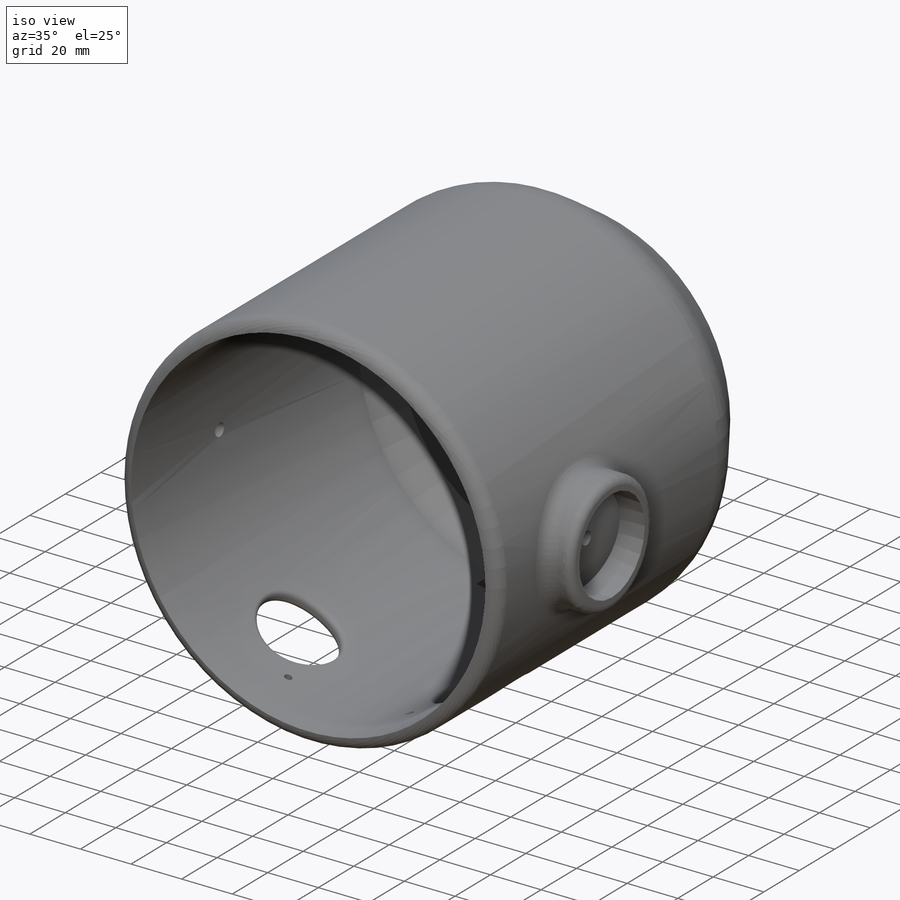
[diagram: iso view]
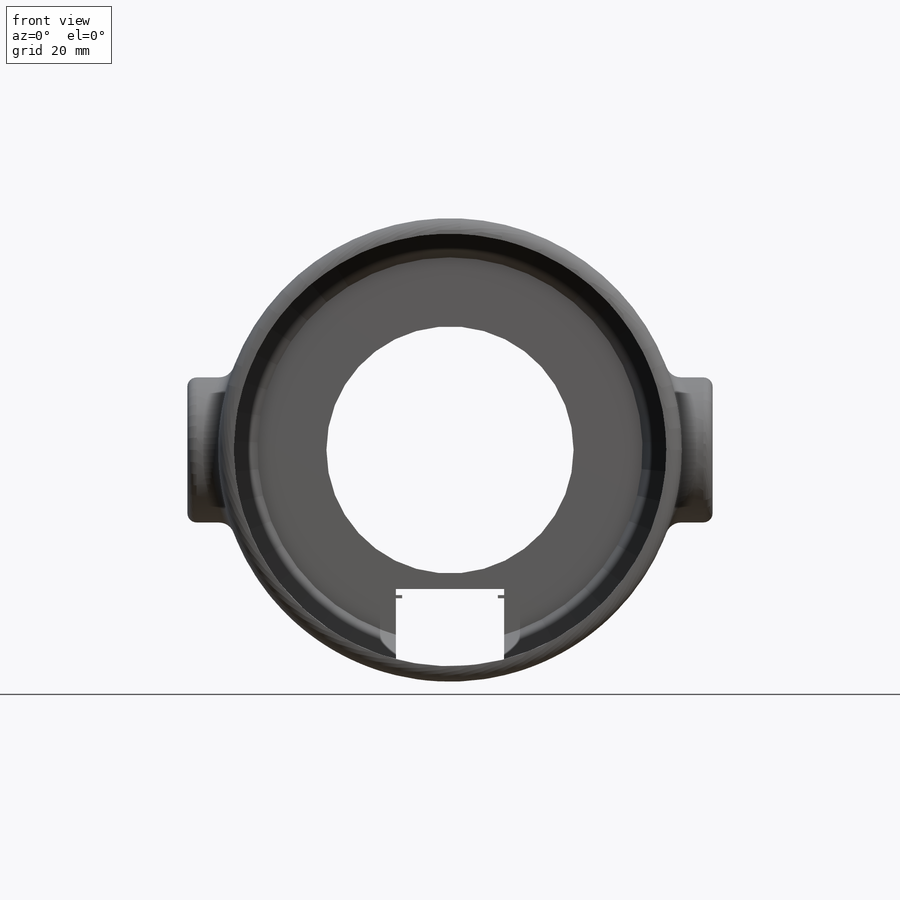
[diagram: front view]
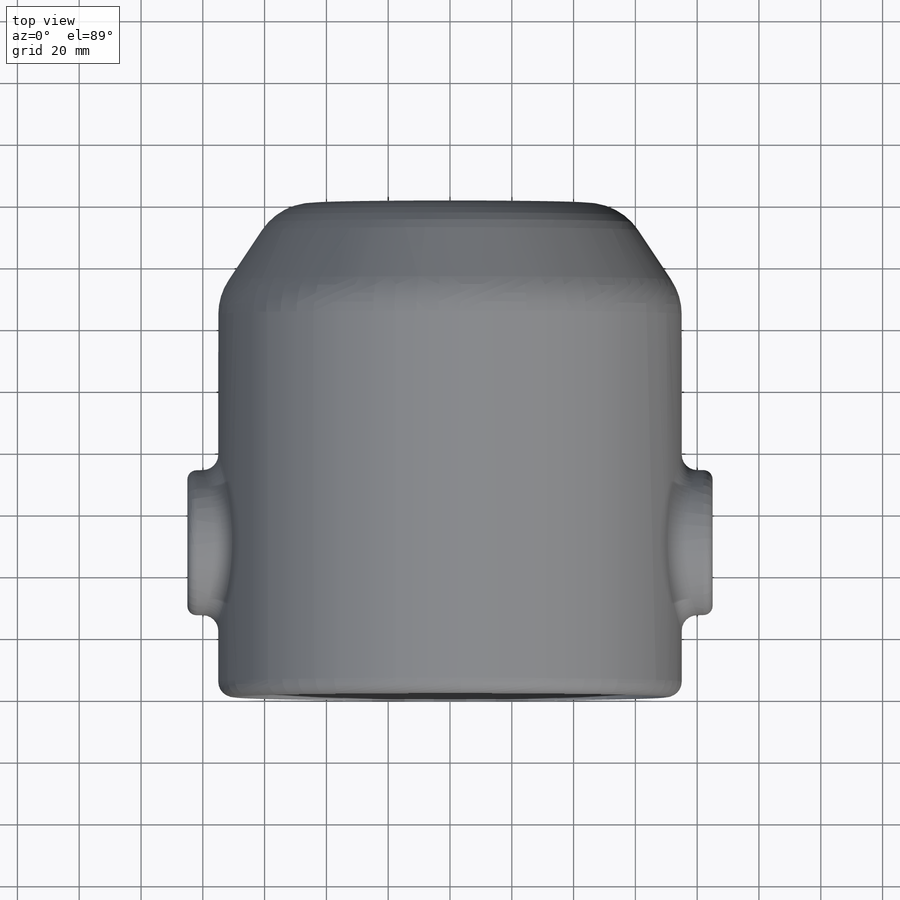
[diagram: top view]
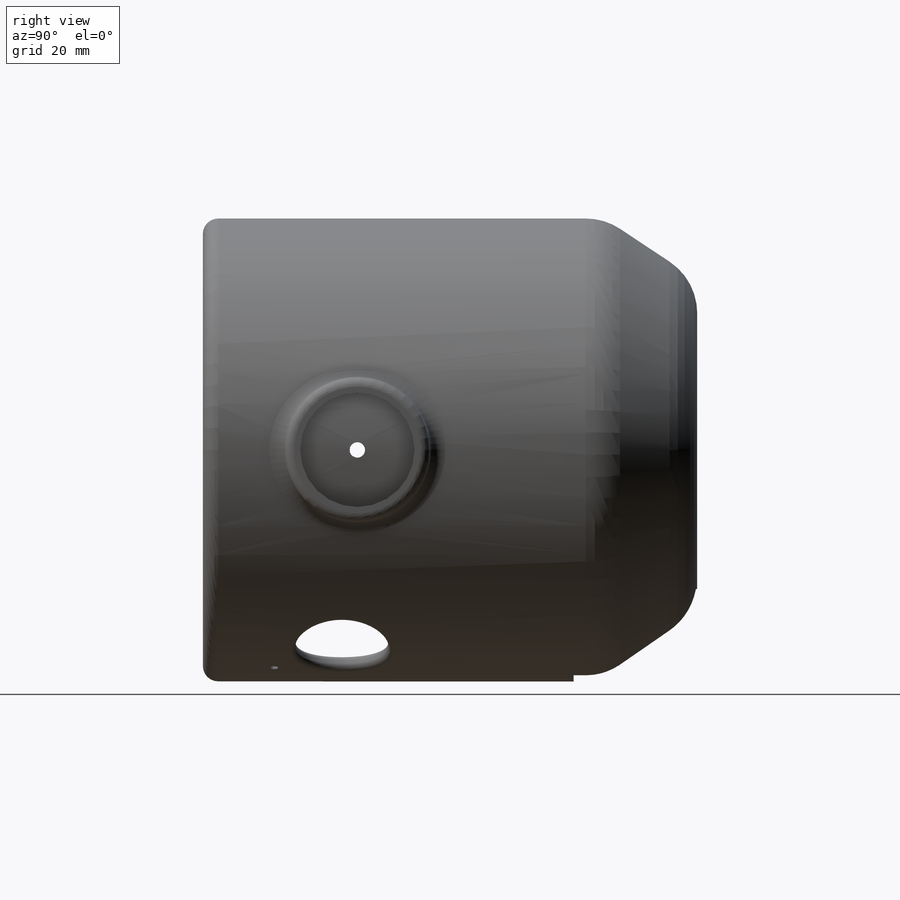
[diagram: right view]
SOLIDWORKS PART (.sldprt)
format: sldprt  version: not decoded by parser v0  size: 653,312 bytes
history: native  units: mm
features: sketch x15, plane x13, cut_extrude x10, fillet x6, extrude x5, shell x2, material x1, chamfer x1 (+12 scaffold rows collapsed)
feature tree (65):
  scaffold x12  (default folders/planes/origin — collapsed)
  material  "Material <not specified>"
  sketch  "Sketch1"  dims[D1=150.0mm]
  extrude  "Boss-Extrude1"  Depth=160mm
  chamfer  "Chamfer1"  Distance=20mm
  shell  "Shell2"  Thickness=5mm
  plane  "Plane3"
  sketch  "Sketch7"  dims[D1=30.0mm D2=115.0mm]
  cut_extrude  "Cut-Extrude1"  Depth=7mm
  plane  "Plane4"
  sketch  "Sketch8"  dims[D1=30.0mm D3=30.0mm D2=115.0mm]
  cut_extrude  "Cut-Extrude2"  Depth=7mm
  plane  "Plane5"
  sketch  "Sketch9"  dims[D1=47.0mm D2=50.0mm]
  extrude  "Boss-Extrude2"  Depth=10mm
  plane  "Plane6"
  sketch  "Sketch10"  dims[D1=47.0mm D2=50.0mm]
  extrude  "Boss-Extrude3"  Depth=10mm
  plane  "Plane7"
  sketch  "Sketch12"  dims[D1=35.0mm]
  cut_extrude  "Cut-Extrude3"  Depth=30mm
  plane  "Plane8"
  plane  "Plane9"
  sketch  "Sketch15"  dims[D2=~1.022461mm D1=15.5mm]
  cut_extrude  "Cut-Extrude5"  [1 undecoded]
  plane  "Plane10"
  sketch  "Sketch16"  dims[D2=~0.928391mm D1=15.5mm]
  cut_extrude  "Cut-Extrude6"  [1 undecoded]
  plane  "Plane11"
  plane  "Plane12"
  plane  "Plane13"
  plane  "Plane14"
  plane  "Plane15"
  fillet  "Fillet4"  Radius=2mm
  fillet  "Fillet5"  Radius=2mm
  fillet  "Fillet7"  Radius=20mm
  sketch  "Sketch21"  dims[D1=80.0mm]
  cut_extrude  "Cut-Extrude8"  [1 undecoded]
  fillet  "Fillet13"  Radius=5mm
  sketch  "Sketch29"  dims[D1=2.0mm D2=1.0mm]
  extrude  "Boss-Extrude4"  Depth=2mm
  sketch  "Sketch30"  dims[D1=~16.336511mm]
  extrude  "Boss-Extrude5"  Depth=2mm
  shell  "Shell5"  Thickness=5mm
  sketch  "Sketch33"  dims[D1=37.0mm D2=~0.033638mm]
  cut_extrude  "Cut-Extrude9"  [1 undecoded]
  sketch  "Sketch34"  dims[D1=37.0mm]
  cut_extrude  "Cut-Extrude10"  [1 undecoded]
  sketch  "Sketch38"  dims[D1=5.0mm]
  cut_extrude  "Cut-Extrude11"  [1 undecoded]
  sketch  "Sketch39"  dims[D1=5.0mm]
  cut_extrude  "Cut-Extrude12"  [1 undecoded]
  fillet  "Fillet14"  Radius=5mm
  fillet  "Fillet15"  Radius=3mm
decode coverage: 32 of 39 modeling features carry decoded parameters
note: ~ marks probable driven/reference dimensions
note: 7 parameter values undecoded
summary: no parameter record found for 7 features
note: suppression state not decoded; provenance and decode notes live in map.json
